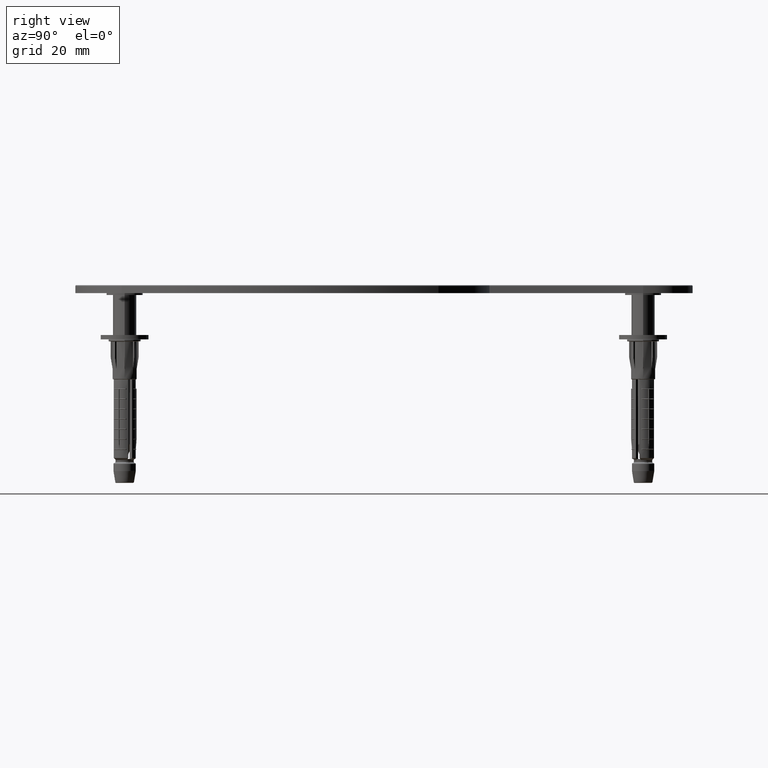
[diagram: clean part render]
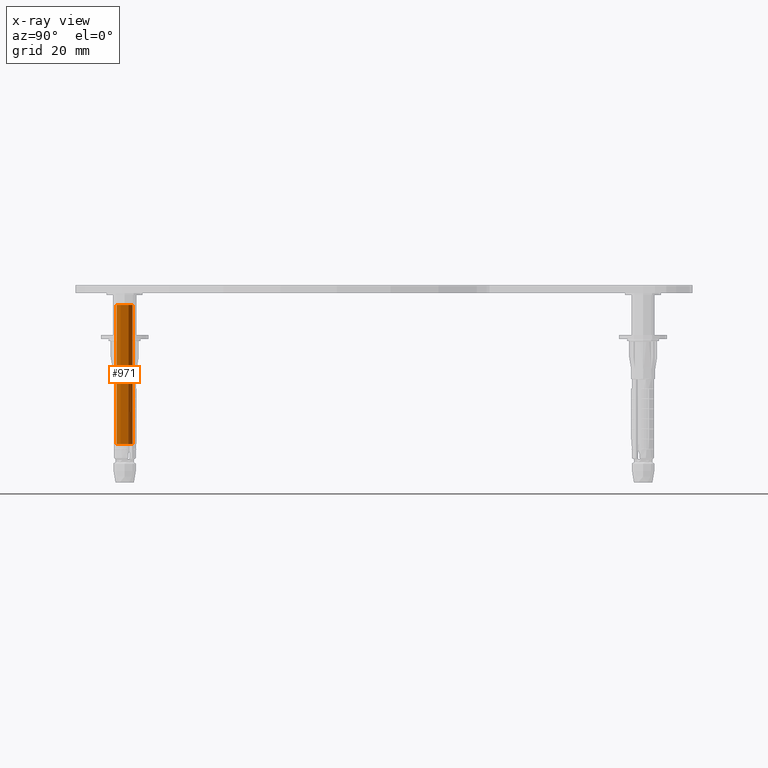
[diagram: x-ray — body ghosted, one internal face saturated and labeled with its STEP entity id]
A machine part, right view, then the same camera in x-ray: the body is ghosted and one INTERNAL B-rep face — a face not visible from any outside direction — is saturated and labeled: STEP entity #971.
In plain terms, the highlighted cylindrical surface (edge-blend (fillet) strip) has radius 2 mm, axis along (-0, -0, -1).
Its self-contained STEP definition (entity closure, byte-faithful):
#971 = ADVANCED_FACE ( 'NONE', ( #39540 ), #25271, .T. ) ;
#2070 = EDGE_CURVE ( 'NONE', #27477, #19124, #24821, .T. ) ;
#3474 = EDGE_CURVE ( 'NONE', #27835, #19124, #37122, .T. ) ;
#4050 = CARTESIAN_POINT ( 'NONE',  ( 2.629838028884532811E-41, 2.000000000000009770, -39.99999999999988631 ) ) ;
#5734 = AXIS2_PLACEMENT_3D ( 'NONE', #18374, #21174, #27322 ) ;
#6742 = DIRECTION ( 'NONE',  ( 1.314919014442269209E-41, 1.000000000000000000, 0.000000000000000000 ) ) ;
#7430 = DIRECTION ( 'NONE',  ( -2.548694494986879549E-32, -1.530808498934207841E-17, -1.000000000000000000 ) ) ;
#8679 = CARTESIAN_POINT ( 'NONE',  ( 5.618597014461522366E-31, 1.999999999999995781, -0.5000000000000073275 ) ) ;
#10369 = EDGE_CURVE ( 'NONE', #13923, #27477, #11252, .T. ) ;
#10742 = VECTOR ( 'NONE', #23426, 1000.000000000000000 ) ;
#11070 = CARTESIAN_POINT ( 'NONE',  ( 2.449293598294697047E-16, -1.999999999999981792, -39.99999999999988631 ) ) ;
#11252 = LINE ( 'NONE', #4050, #10742 ) ;
#11373 = DIRECTION ( 'NONE',  ( 1.314919014442269209E-41, 1.000000000000000000, 0.000000000000000000 ) ) ;
#11830 = VECTOR ( 'NONE', #7430, 1000.000000000000000 ) ;
#12668 = EDGE_LOOP ( 'NONE', ( #23888, #30448, #36623, #17168 ) ) ;
#13923 = VERTEX_POINT ( 'NONE', #8679 ) ;
#14668 = CARTESIAN_POINT ( 'NONE',  ( 2.629838028884532811E-41, 2.000000000000009770, -35.40999999999990422 ) ) ;
#17001 = DIRECTION ( 'NONE',  ( -2.548694494986879549E-32, -1.530808498934207841E-17, -1.000000000000000000 ) ) ;
#17168 = ORIENTED_EDGE ( 'NONE', *, *, #10369, .F. ) ;
#18374 = CARTESIAN_POINT ( 'NONE',  ( 0.000000000000000000, 0.000000000000000000, -0.5000000000000073275 ) ) ;
#19124 = VERTEX_POINT ( 'NONE', #26919 ) ;
#21174 = DIRECTION ( 'NONE',  ( -2.548694494986879549E-32, -1.530808498934202910E-17, -1.000000000000000000 ) ) ;
#22988 = CARTESIAN_POINT ( 'NONE',  ( 0.000000000000000000, 1.387778780781445676E-14, -39.99999999999988631 ) ) ;
#23426 = DIRECTION ( 'NONE',  ( -2.548694494986879549E-32, -1.530808498934207841E-17, -1.000000000000000000 ) ) ;
#23888 = ORIENTED_EDGE ( 'NONE', *, *, #29319, .T. ) ;
#24821 = CIRCLE ( 'NONE', #29760, 1.999999999999995781 ) ;
#24937 = CARTESIAN_POINT ( 'NONE',  ( 0.000000000000000000, 1.387778780781445676E-14, -35.40999999999990422 ) ) ;
#25271 = CYLINDRICAL_SURFACE ( 'NONE', #36598, 1.999999999999995781 ) ;
#25549 = CIRCLE ( 'NONE', #5734, 1.999999999999995781 ) ;
#26919 = CARTESIAN_POINT ( 'NONE',  ( 2.449293598294702963E-16, -1.999999999999981792, -35.40999999999990422 ) ) ;
#27322 = DIRECTION ( 'NONE',  ( -1.314919014442268700E-41, -1.000000000000000000, 0.000000000000000000 ) ) ;
#27477 = VERTEX_POINT ( 'NONE', #14668 ) ;
#27835 = VERTEX_POINT ( 'NONE', #33434 ) ;
#29319 = EDGE_CURVE ( 'NONE', #13923, #27835, #25549, .T. ) ;
#29760 = AXIS2_PLACEMENT_3D ( 'NONE', #24937, #34409, #6742 ) ;
#30448 = ORIENTED_EDGE ( 'NONE', *, *, #3474, .T. ) ;
#33434 = CARTESIAN_POINT ( 'NONE',  ( 2.449293598294719726E-16, -1.999999999999995781, -0.5000000000000073275 ) ) ;
#34409 = DIRECTION ( 'NONE',  ( -2.548694494986879549E-32, -1.530808498934207841E-17, -1.000000000000000000 ) ) ;
#36598 = AXIS2_PLACEMENT_3D ( 'NONE', #22988, #17001, #11373 ) ;
#36623 = ORIENTED_EDGE ( 'NONE', *, *, #2070, .F. ) ;
#37122 = LINE ( 'NONE', #11070, #11830 ) ;
#39540 = FACE_OUTER_BOUND ( 'NONE', #12668, .T. ) ;